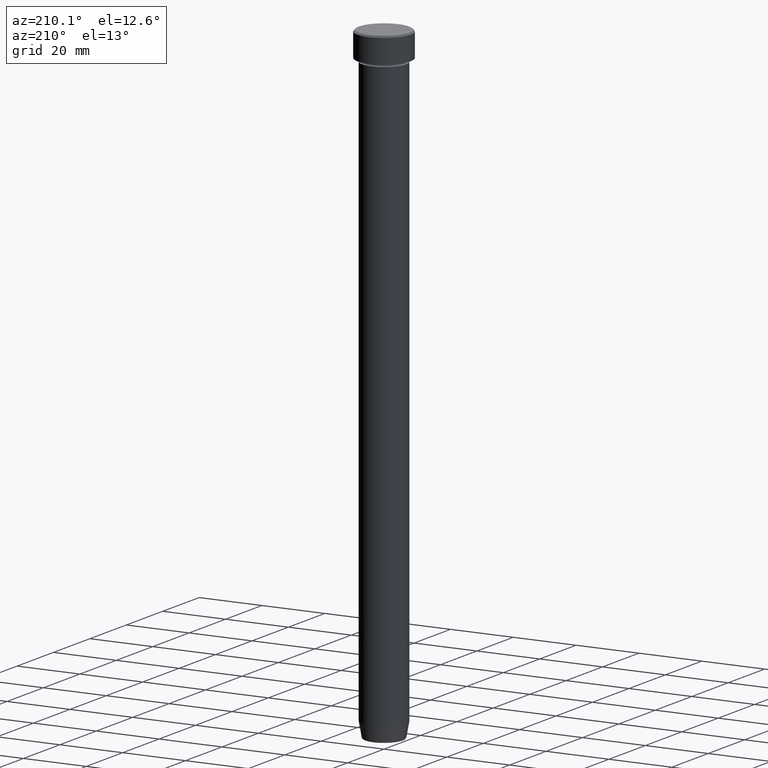
[diagram: clean part render]
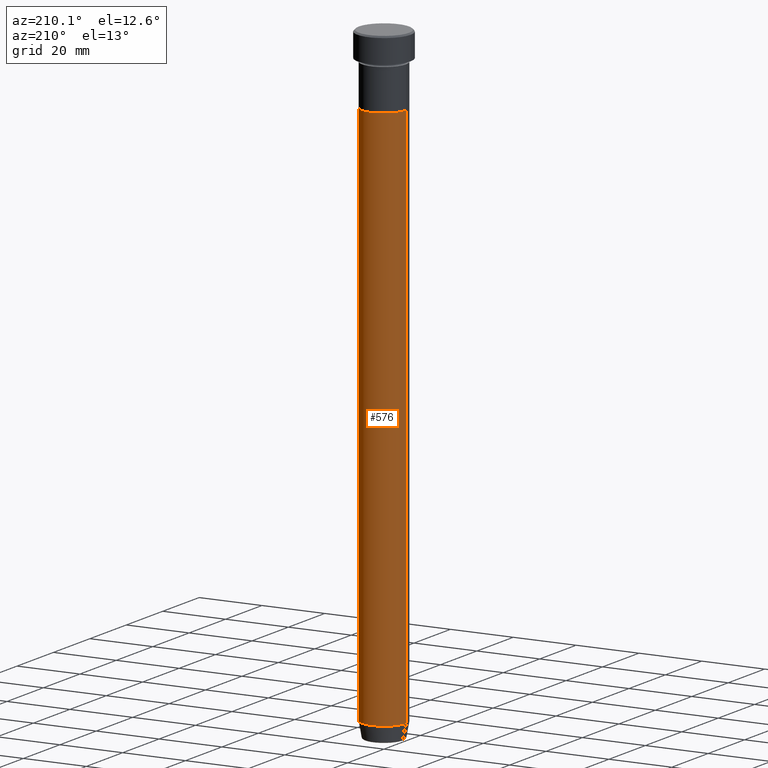
[diagram: same view with one face highlighted and labeled with its STEP entity id]
A machine part, auxiliary view. The second image highlights one B-rep face of the part: STEP entity #576.
In plain terms, the highlighted cylindrical surface (edge-blend (fillet) strip) has radius 7 mm, axis along (-0, -0, 1).
Its self-contained STEP definition (entity closure, byte-faithful):
#20 = LINE ( 'NONE', #247, #319 ) ;
#40 = VERTEX_POINT ( 'NONE', #541 ) ;
#73 = ORIENTED_EDGE ( 'NONE', *, *, #284, .F. ) ;
#84 = EDGE_LOOP ( 'NONE', ( #117, #423, #104, #73 ) ) ;
#104 = ORIENTED_EDGE ( 'NONE', *, *, #488, .F. ) ;
#117 = ORIENTED_EDGE ( 'NONE', *, *, #158, .T. ) ;
#124 = CARTESIAN_POINT ( 'NONE',  ( -6.999999999999999112, 8.572527594031472204E-16, 0.000000000000000000 ) ) ;
#139 = DIRECTION ( 'NONE',  ( -0.000000000000000000, -0.000000000000000000, 1.000000000000000000 ) ) ;
#158 = EDGE_CURVE ( 'NONE', #165, #581, #473, .T. ) ;
#165 = VERTEX_POINT ( 'NONE', #425 ) ;
#173 = CARTESIAN_POINT ( 'NONE',  ( 0.000000000000000000, 0.000000000000000000, -22.00000000000000000 ) ) ;
#224 = CIRCLE ( 'NONE', #528, 6.999999999999999112 ) ;
#235 = VECTOR ( 'NONE', #316, 1000.000000000000000 ) ;
#247 = CARTESIAN_POINT ( 'NONE',  ( 6.999999999999999112, 0.000000000000000000, 0.000000000000000000 ) ) ;
#260 = DIRECTION ( 'NONE',  ( -0.000000000000000000, -0.000000000000000000, 1.000000000000000000 ) ) ;
#284 = EDGE_CURVE ( 'NONE', #165, #527, #20, .T. ) ;
#316 = DIRECTION ( 'NONE',  ( -0.000000000000000000, -0.000000000000000000, 1.000000000000000000 ) ) ;
#319 = VECTOR ( 'NONE', #260, 1000.000000000000000 ) ;
#320 = AXIS2_PLACEMENT_3D ( 'NONE', #554, #139, #321 ) ;
#321 = DIRECTION ( 'NONE',  ( 1.000000000000000000, 0.000000000000000000, 0.000000000000000000 ) ) ;
#322 = CARTESIAN_POINT ( 'NONE',  ( 0.000000000000000000, 0.000000000000000000, -195.0000000000000000 ) ) ;
#325 = FACE_OUTER_BOUND ( 'NONE', #84, .T. ) ;
#364 = CARTESIAN_POINT ( 'NONE',  ( 6.999999999999999112, 0.000000000000000000, -22.00000000000000000 ) ) ;
#369 = CYLINDRICAL_SURFACE ( 'NONE', #320, 6.999999999999999112 ) ;
#375 = DIRECTION ( 'NONE',  ( 1.000000000000000000, 0.000000000000000000, 0.000000000000000000 ) ) ;
#398 = EDGE_CURVE ( 'NONE', #581, #40, #492, .T. ) ;
#423 = ORIENTED_EDGE ( 'NONE', *, *, #398, .T. ) ;
#424 = CARTESIAN_POINT ( 'NONE',  ( -6.999999999999999112, 8.572527594031472204E-16, -195.0000000000000000 ) ) ;
#425 = CARTESIAN_POINT ( 'NONE',  ( 6.999999999999999112, 0.000000000000000000, -195.0000000000000000 ) ) ;
#444 = DIRECTION ( 'NONE',  ( -0.000000000000000000, -0.000000000000000000, 1.000000000000000000 ) ) ;
#463 = DIRECTION ( 'NONE',  ( -0.000000000000000000, -0.000000000000000000, 1.000000000000000000 ) ) ;
#473 = CIRCLE ( 'NONE', #568, 6.999999999999999112 ) ;
#488 = EDGE_CURVE ( 'NONE', #527, #40, #224, .T. ) ;
#492 = LINE ( 'NONE', #124, #235 ) ;
#527 = VERTEX_POINT ( 'NONE', #364 ) ;
#528 = AXIS2_PLACEMENT_3D ( 'NONE', #173, #444, #544 ) ;
#541 = CARTESIAN_POINT ( 'NONE',  ( -6.999999999999999112, 8.572527594031472204E-16, -22.00000000000000000 ) ) ;
#544 = DIRECTION ( 'NONE',  ( 1.000000000000000000, 0.000000000000000000, 0.000000000000000000 ) ) ;
#554 = CARTESIAN_POINT ( 'NONE',  ( 0.000000000000000000, 0.000000000000000000, 0.000000000000000000 ) ) ;
#568 = AXIS2_PLACEMENT_3D ( 'NONE', #322, #463, #375 ) ;
#576 = ADVANCED_FACE ( 'NONE', ( #325 ), #369, .T. ) ;
#581 = VERTEX_POINT ( 'NONE', #424 ) ;